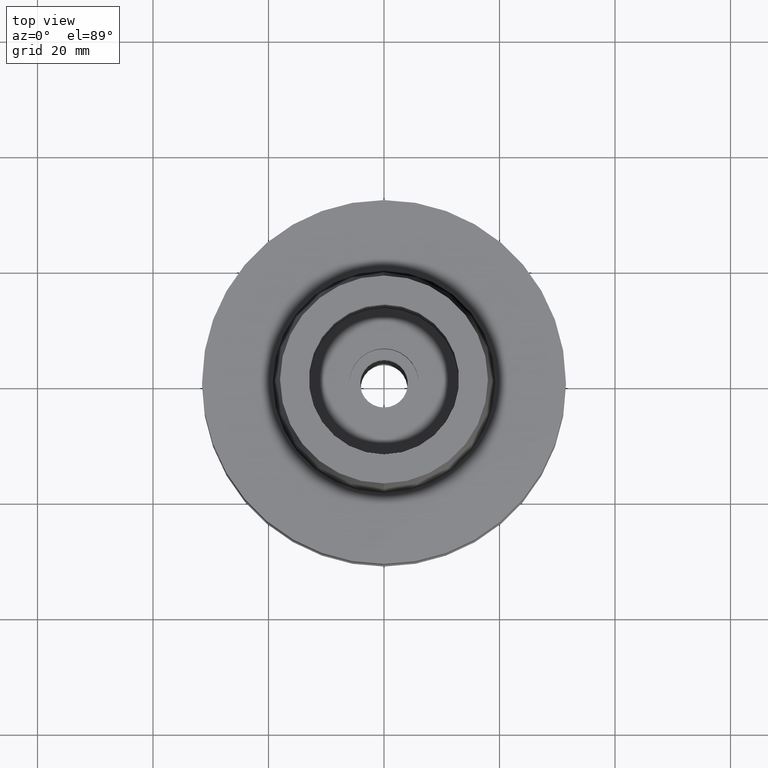
[diagram: clean part render]
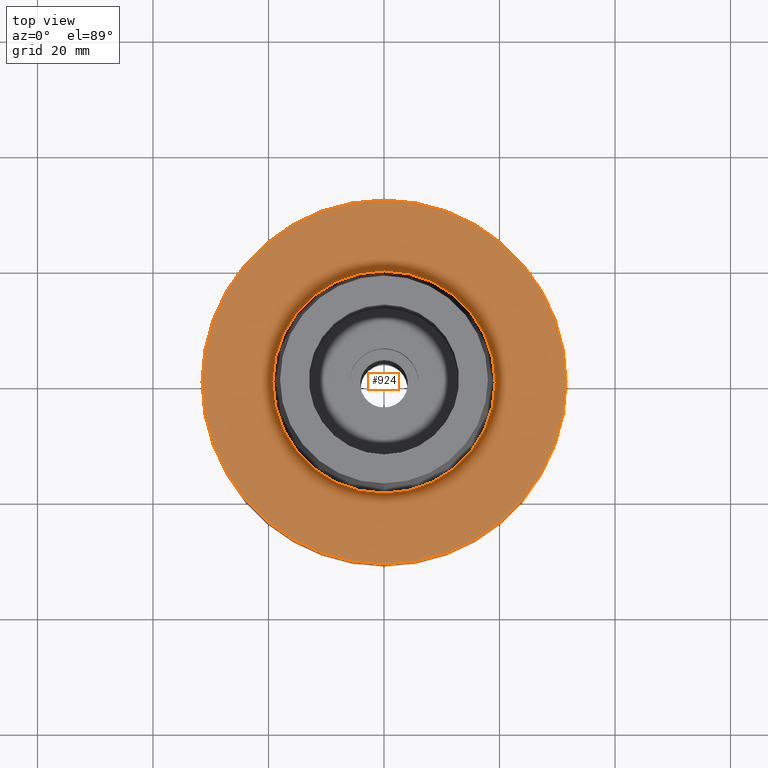
[diagram: same view with one face highlighted and labeled with its STEP entity id]
A machine part, top view. The second image highlights one B-rep face of the part: STEP entity #924.
In plain terms, the highlighted planar face has unit normal (0, 0, 1).
Its self-contained STEP definition (entity closure, byte-faithful):
#25 = DIRECTION ( 'NONE',  ( 0.0000000000000000000, 0.0000000000000000000, -1.000000000000000000 ) ) ;
#159 = ORIENTED_EDGE ( 'NONE', *, *, #1955, .F. ) ;
#207 = DIRECTION ( 'NONE',  ( 0.0000000000000000000, 0.0000000000000000000, -1.000000000000000000 ) ) ;
#236 = AXIS2_PLACEMENT_3D ( 'NONE', #2112, #437, #2126 ) ;
#267 = CARTESIAN_POINT ( 'NONE',  ( 0.0000000000000000000, -31.50000000000000000, -2.060573933703999733E-13 ) ) ;
#355 = FACE_OUTER_BOUND ( 'NONE', #1138, .T. ) ;
#384 = AXIS2_PLACEMENT_3D ( 'NONE', #1073, #25, #897 ) ;
#387 = DIRECTION ( 'NONE',  ( 1.000000000000000000, 0.0000000000000000000, 0.0000000000000000000 ) ) ;
#416 = AXIS2_PLACEMENT_3D ( 'NONE', #2307, #1454, #387 ) ;
#437 = DIRECTION ( 'NONE',  ( 0.0000000000000000000, 0.0000000000000000000, 1.000000000000000000 ) ) ;
#499 = AXIS2_PLACEMENT_3D ( 'NONE', #1547, #207, #1753 ) ;
#523 = VERTEX_POINT ( 'NONE', #1886 ) ;
#587 = EDGE_CURVE ( 'NONE', #523, #700, #1457, .T. ) ;
#628 = EDGE_CURVE ( 'NONE', #2763, #2649, #1806, .T. ) ;
#634 = DIRECTION ( 'NONE',  ( 0.0000000000000000000, 0.0000000000000000000, 1.000000000000000000 ) ) ;
#700 = VERTEX_POINT ( 'NONE', #2386 ) ;
#897 = DIRECTION ( 'NONE',  ( 0.0000000000000000000, -1.000000000000000000, 0.0000000000000000000 ) ) ;
#924 = ADVANCED_FACE ( 'NONE', ( #355, #1217 ), #2731, .T. ) ;
#970 = ORIENTED_EDGE ( 'NONE', *, *, #2597, .F. ) ;
#984 = EDGE_LOOP ( 'NONE', ( #970, #1352 ) ) ;
#1073 = CARTESIAN_POINT ( 'NONE',  ( 0.0000000000000000000, 0.0000000000000000000, -2.060573933703999733E-13 ) ) ;
#1138 = EDGE_LOOP ( 'NONE', ( #159, #1885 ) ) ;
#1217 = FACE_BOUND ( 'NONE', #984, .T. ) ;
#1266 = CARTESIAN_POINT ( 'NONE',  ( 0.0000000000000000000, 0.0000000000000000000, 5.115907697473000027E-13 ) ) ;
#1352 = ORIENTED_EDGE ( 'NONE', *, *, #587, .F. ) ;
#1454 = DIRECTION ( 'NONE',  ( 0.0000000000000000000, 0.0000000000000000000, 1.000000000000000000 ) ) ;
#1457 = CIRCLE ( 'NONE', #236, 19.24999954280000125 ) ;
#1547 = CARTESIAN_POINT ( 'NONE',  ( 0.0000000000000000000, 0.0000000000000000000, -2.060573933703999733E-13 ) ) ;
#1635 = CIRCLE ( 'NONE', #499, 31.50000000000000000 ) ;
#1753 = DIRECTION ( 'NONE',  ( 0.0000000000000000000, 1.000000000000000000, 0.0000000000000000000 ) ) ;
#1806 = CIRCLE ( 'NONE', #384, 31.50000000000000000 ) ;
#1885 = ORIENTED_EDGE ( 'NONE', *, *, #628, .F. ) ;
#1886 = CARTESIAN_POINT ( 'NONE',  ( 0.0000000000000000000, -19.24999954280000125, 3.410605131648000255E-13 ) ) ;
#1900 = DIRECTION ( 'NONE',  ( 0.0000000000000000000, 1.000000000000000000, 0.0000000000000000000 ) ) ;
#1953 = CARTESIAN_POINT ( 'NONE',  ( 0.0000000000000000000, 31.50000000000000000, -2.060573933703999733E-13 ) ) ;
#1955 = EDGE_CURVE ( 'NONE', #2649, #2763, #1635, .T. ) ;
#2112 = CARTESIAN_POINT ( 'NONE',  ( 0.0000000000000000000, 0.0000000000000000000, 5.115907697473000027E-13 ) ) ;
#2126 = DIRECTION ( 'NONE',  ( 0.0000000000000000000, -1.000000000000000000, 0.0000000000000000000 ) ) ;
#2307 = CARTESIAN_POINT ( 'NONE',  ( 0.0000000000000000000, 0.0000000000000000000, 0.0000000000000000000 ) ) ;
#2386 = CARTESIAN_POINT ( 'NONE',  ( 0.0000000000000000000, 19.24999954280000125, 3.410605131648000255E-13 ) ) ;
#2574 = AXIS2_PLACEMENT_3D ( 'NONE', #1266, #634, #1900 ) ;
#2597 = EDGE_CURVE ( 'NONE', #700, #523, #2666, .T. ) ;
#2649 = VERTEX_POINT ( 'NONE', #1953 ) ;
#2666 = CIRCLE ( 'NONE', #2574, 19.24999954280000125 ) ;
#2731 = PLANE ( 'NONE',  #416 ) ;
#2763 = VERTEX_POINT ( 'NONE', #267 ) ;